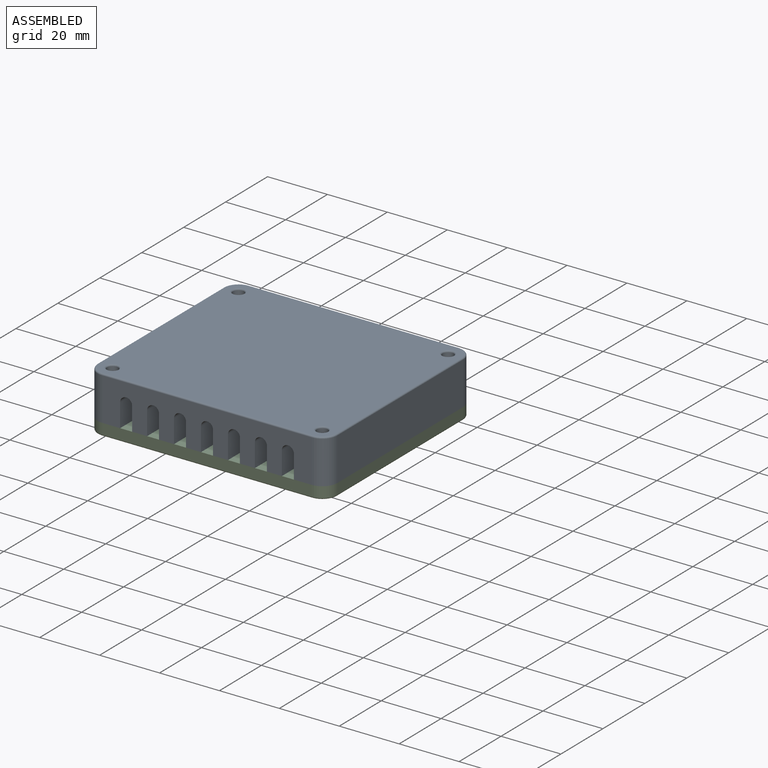
[diagram: assembled view]
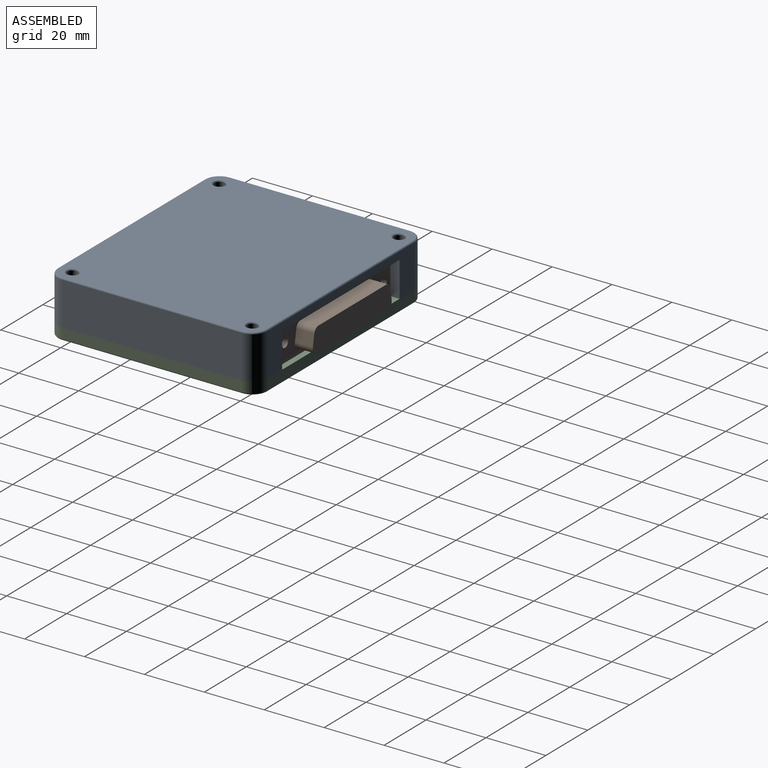
[diagram: assembled view, second angle]
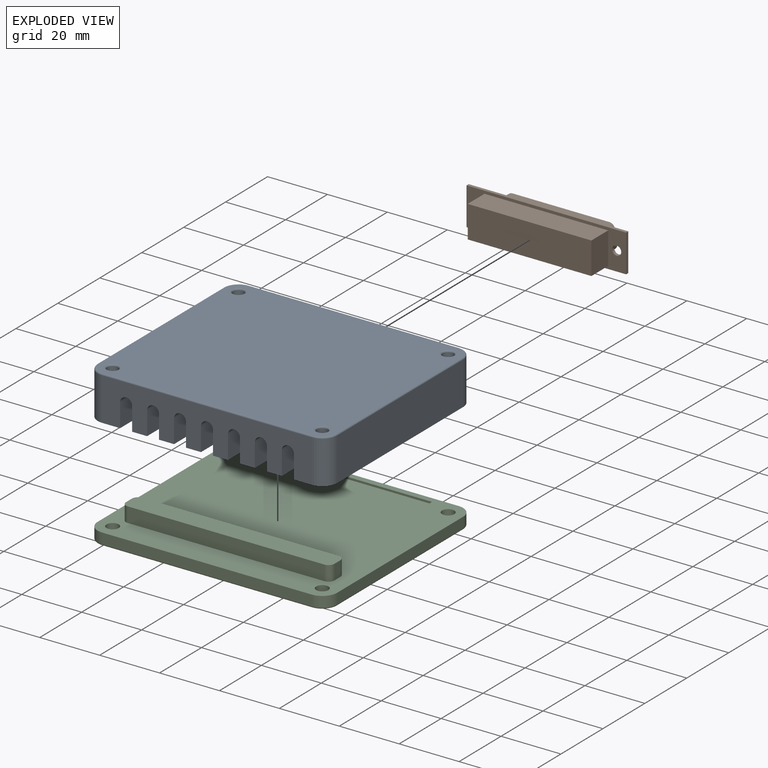
[diagram: exploded view]
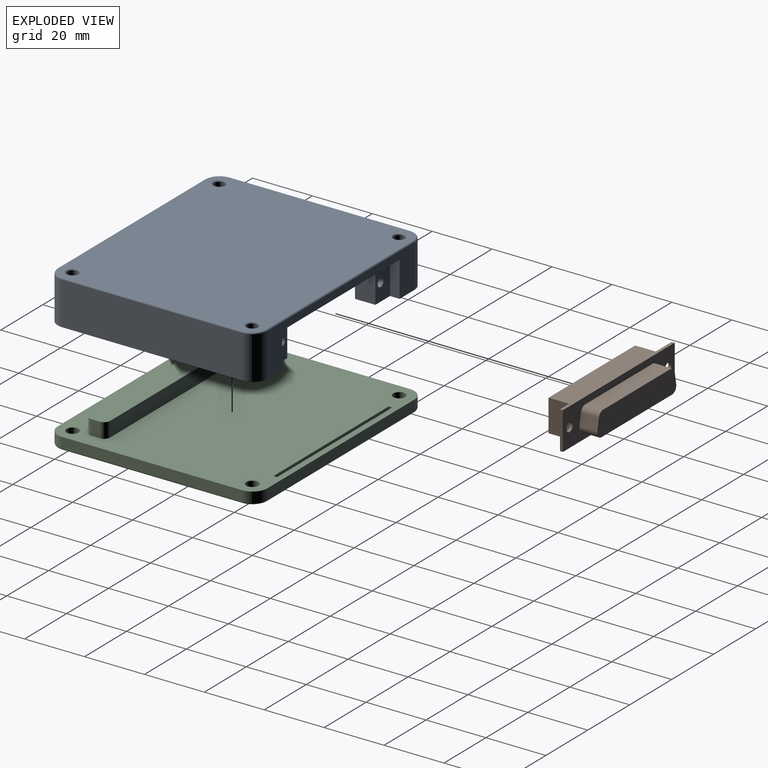
[diagram: exploded view, second angle]
ASSEMBLY  parts=3 mates=2
PART A: 106 faces, bbox 80.8x70.8x14.8 mm
  f0: plane 5x4mm, normal (0,0,1), area 20mm2, adj f23,f28,f48,f79
  f1: plane 5x4mm, normal (0,0,1), area 20mm2, adj f20,f24,f48,f79
  f2: plane 5x4mm, normal (0,0,1), area 20mm2, adj f17,f21,f48,f79
  f3: plane 5x4mm, normal (0,0,1), area 20mm2, adj f14,f18,f48,f79
  f4: plane 5x4mm, normal (0,0,1), area 20mm2, adj f11,f15,f48,f79
  f5: plane 5x4mm, normal (0,0,1), area 20mm2, adj f8,f12,f48,f79
  f6: plane 70x19mm, normal (0,0,1), area 553.4mm2, adj f9,f37,f39,f40,f43,f44,f45,f46
  f7: plane 70x19mm, normal (0,0,1), area 553.4mm2, adj f26,f37,f38,f39,f42,f44,f48,f49
  f8: plane 7.8x4mm, normal (-1,0,0), area 31.2mm2, adj f5,f10,f48,f79
  f9: plane 7.8x4mm, normal (1,0,0), area 31.2mm2, adj f6,f10,f48,f79
  f10: cylinder r=2mm len=4mm, axis (0,1,0), area 25.1mm2, adj f8,f9,f48,f79
  f11: plane 7.8x4mm, normal (-1,0,0), area 31.2mm2, adj f4,f13,f48,f79
  f12: plane 7.8x4mm, normal (1,0,0), area 31.2mm2, adj f5,f13,f48,f79
  f13: cylinder r=2mm len=4mm, axis (0,1,0), area 25.1mm2, adj f11,f12,f48,f79
  f14: plane 7.8x4mm, normal (-1,0,0), area 31.2mm2, adj f3,f16,f48,f79
  f15: plane 7.8x4mm, normal (1,0,0), area 31.2mm2, adj f4,f16,f48,f79
  f16: cylinder r=2mm len=4mm, axis (0,1,0), area 25.1mm2, adj f14,f15,f48,f79
  f17: plane 7.8x4mm, normal (-1,0,0), area 31.2mm2, adj f2,f19,f48,f79
  f18: plane 7.8x4mm, normal (1,0,0), area 31.2mm2, adj f3,f19,f48,f79
  f19: cylinder r=2mm len=4mm, axis (0,1,0), area 25.1mm2, adj f17,f18,f48,f79
  f20: plane 7.8x4mm, normal (-1,0,0), area 31.2mm2, adj f1,f22,f48,f79
  f21: plane 7.8x4mm, normal (1,0,0), area 31.2mm2, adj f2,f22,f48,f79
  f22: cylinder r=2mm len=4mm, axis (0,1,0), area 25.1mm2, adj f20,f21,f48,f79
  f23: plane 7.8x4mm, normal (-1,0,0), area 31.2mm2, adj f0,f25,f48,f79
  f24: plane 7.8x4mm, normal (1,0,0), area 31.2mm2, adj f1,f25,f48,f79
  f25: cylinder r=2mm len=4mm, axis (0,1,0), area 25.1mm2, adj f23,f24,f48,f79
  f26: plane 7.8x4mm, normal (-1,0,0), area 31.2mm2, adj f7,f27,f48,f79
  f27: cylinder r=2mm len=4mm, axis (0,1,0), area 25.1mm2, adj f26,f28,f48,f79
  f28: plane 7.8x4mm, normal (1,0,0), area 31.2mm2, adj f0,f27,f48,f79
  f29: plane 9x5mm, normal (0,0,1), area 45mm2, adj f39,f73,f78,f81
  f30: plane 9x5mm, normal (0,0,1), area 45mm2, adj f39,f70,f74,f81
  f31: plane 9x5mm, normal (0,0,1), area 45mm2, adj f39,f67,f71,f81
  f32: plane 9x5mm, normal (0,0,1), area 45mm2, adj f39,f64,f68,f81
  f33: plane 9x5mm, normal (0,0,1), area 45mm2, adj f39,f61,f65,f81
  f34: plane 9x5mm, normal (0,0,1), area 45mm2, adj f39,f58,f62,f81
  f35: plane 74x46.8mm, normal (0,0,1), area 3005.6mm2, adj f44,f45,f46,f47,f48,f49,f50,f51
  f36: plane 56x3.2mm, normal (0,0,1), area 113.2mm2, adj f37,f42,f43,f44,f54,f55,f56
  f37: plane 70x14.3mm, normal (0,-1,0), area 340.2mm2, adj f6,f7,f36,f42,f43,f84,f87,f102
  f38: plane 60x14.3mm, normal (1,0,0), area 858mm2, adj f7,f84,f85,f101
  f39: plane 70x14.3mm, normal (0,1,0), area 738.6mm2, adj f6,f7,f29,f30,f31,f32,f33,f34
  f40: plane 60x14.3mm, normal (-1,0,0), area 858mm2, adj f6,f86,f87,f98
  f41: plane 79x69mm, normal (0,0,-1), area 5364.2mm2, adj f92,f93,f94,f95,f96,f97,f98,f99
  f42: plane 11.8x3.2mm, normal (-1,0,0), area 37.8mm2, adj f7,f36,f37,f44
  f43: plane 11.8x3.2mm, normal (1,0,0), area 37.8mm2, adj f6,f36,f37,f44
  f44: plane 56x12.8mm, normal (0,-1,0), area 207.9mm2, adj f6,f7,f35,f36,f42,f43,f45,f51
  f45: plane 11.8x6.8mm, normal (1,0,0), area 80.2mm2, adj f6,f35,f44,f46
  f46: plane 11.8x4mm, normal (0,1,0), area 41mm2, adj f6,f35,f45,f53,f105
  f47: plane 20x11.8mm, normal (1,0,0), area 236mm2, adj f6,f35,f48,f105
  f48: plane 74x11.8mm, normal (0,-1,0), area 610.8mm2, adj f0,f1,f2,f3,f4,f5,f6,f7
  f49: plane 20x11.8mm, normal (-1,0,0), area 236mm2, adj f7,f35,f48,f104
  f50: plane 11.8x4mm, normal (0,1,0), area 41mm2, adj f7,f35,f51,f52,f104
  f51: plane 11.8x6.8mm, normal (-1,0,0), area 80.2mm2, adj f7,f35,f44,f50
  f52: cylinder r=1.4mm len=6.8mm, axis (0,-1,0), area 59.8mm2, adj f44,f50
  f53: cylinder r=1.4mm len=6.8mm, axis (0,-1,0), area 59.8mm2, adj f44,f46
  f54: plane 1.2x1mm, normal (1,0,0), area 1.2mm2, adj f36,f44,f55,f57
  f55: plane 55x1mm, normal (0,1,0), area 55mm2, adj f36,f54,f56,f57
  f56: plane 1.2x1mm, normal (-1,0,0), area 1.2mm2, adj f36,f44,f55,f57
  f57: plane 55x1.2mm, normal (0,0,1), area 66mm2, adj f44,f54,f55,f56
  f58: plane 9x7.8mm, normal (-1,0,0), area 70.2mm2, adj f34,f39,f60,f81
  f59: plane 9x7.8mm, normal (1,0,0), area 70.2mm2, adj f6,f39,f60,f81
  f60: cylinder r=2mm len=9mm, axis (0,1,0), area 56.5mm2, adj f39,f58,f59,f81
  f61: plane 9x7.8mm, normal (-1,0,0), area 70.2mm2, adj f33,f39,f63,f81
  f62: plane 9x7.8mm, normal (1,0,0), area 70.2mm2, adj f34,f39,f63,f81
  f63: cylinder r=2mm len=9mm, axis (0,1,0), area 56.5mm2, adj f39,f61,f62,f81
  f64: plane 9x7.8mm, normal (-1,0,0), area 70.2mm2, adj f32,f39,f66,f81
  f65: plane 9x7.8mm, normal (1,0,0), area 70.2mm2, adj f33,f39,f66,f81
  f66: cylinder r=2mm len=9mm, axis (0,1,0), area 56.5mm2, adj f39,f64,f65,f81
  f67: plane 9x7.8mm, normal (-1,0,0), area 70.2mm2, adj f31,f39,f69,f81
  f68: plane 9x7.8mm, normal (1,0,0), area 70.2mm2, adj f32,f39,f69,f81
  f69: cylinder r=2mm len=9mm, axis (0,1,0), area 56.5mm2, adj f39,f67,f68,f81
  f70: plane 9x7.8mm, normal (-1,0,0), area 70.2mm2, adj f30,f39,f72,f81
  f71: plane 9x7.8mm, normal (1,0,0), area 70.2mm2, adj f31,f39,f72,f81
  f72: cylinder r=2mm len=9mm, axis (0,1,0), area 56.5mm2, adj f39,f70,f71,f81
  f73: plane 9x7.8mm, normal (-1,0,0), area 70.2mm2, adj f29,f39,f75,f81
  f74: plane 9x7.8mm, normal (1,0,0), area 70.2mm2, adj f30,f39,f75,f81
  f75: cylinder r=2mm len=9mm, axis (0,1,0), area 56.5mm2, adj f39,f73,f74,f81
  f76: plane 9x7.8mm, normal (-1,0,0), area 70.2mm2, adj f7,f39,f77,f81
  f77: cylinder r=2mm len=9mm, axis (0,1,0), area 56.5mm2, adj f39,f76,f78,f81
  f78: plane 9x7.8mm, normal (1,0,0), area 70.2mm2, adj f29,f39,f77,f81
  f79: plane 70x12mm, normal (0,1,0), area 577.6mm2, adj f0,f1,f2,f3,f4,f5,f6,f7
  f80: plane 12x7mm, normal (-1,0,0), area 84mm2, adj f7,f79,f81,f83
  f81: plane 70x12mm, normal (0,-1,0), area 577.6mm2, adj f6,f7,f29,f30,f31,f32,f33,f34
  f82: plane 12x7mm, normal (1,0,0), area 84mm2, adj f6,f79,f81,f83
  f83: plane 70x7mm, normal (0,0,1), area 490mm2, adj f79,f80,f81,f82
  f84: cylinder r=5mm len=14.3mm, axis (0,0,1), area 112.3mm2, adj f7,f37,f38,f103
  f85: cylinder r=5mm len=14.3mm, axis (0,0,-1), area 112.3mm2, adj f7,f38,f39,f99
  f86: cylinder r=5mm len=14.3mm, axis (0,0,1), area 112.3mm2, adj f6,f39,f40,f96
  f87: cylinder r=5mm len=14.3mm, axis (0,0,-1), area 112.3mm2, adj f6,f37,f40,f100
  f88: cylinder r=1.85mm len=14.3mm, axis (0,0,-1), area 166.2mm2, adj f6,f95
  f89: cylinder r=1.85mm len=14.3mm, axis (0,0,-1), area 166.2mm2, adj f7,f92
  f90: cylinder r=1.85mm len=14.3mm, axis (0,0,-1), area 166.2mm2, adj f6,f93
  f91: cylinder r=1.85mm len=14.3mm, axis (0,0,-1), area 166.2mm2, adj f7,f94
  f92: torus R=2.35mm, axis (0,0,1), area 10mm2, adj f41,f89
  f93: torus R=2.35mm, axis (0,0,1), area 10mm2, adj f41,f90
  f94: torus R=2.35mm, axis (0,0,1), area 10mm2, adj f41,f91
  f95: torus R=2.35mm, axis (0,0,1), area 10mm2, adj f41,f88
  f96: torus R=4.5mm, axis (0,0,1), area 5.9mm2, adj f41,f86,f97,f98
  f97: cylinder r=0.5mm len=70mm, axis (-1,0,0), area 55mm2, adj f39,f41,f96,f99
  f98: cylinder r=0.5mm len=60mm, axis (0,-1,0), area 47.1mm2, adj f40,f41,f96,f100
  f99: torus R=4.5mm, axis (0,0,1), area 5.9mm2, adj f41,f85,f97,f101
  f100: torus R=4.5mm, axis (0,0,1), area 5.9mm2, adj f41,f87,f98,f102
  f101: cylinder r=0.5mm len=60mm, axis (0,1,0), area 47.1mm2, adj f38,f41,f99,f103
  f102: cylinder r=0.5mm len=70mm, axis (1,0,0), area 55mm2, adj f37,f41,f100,f103
  f103: torus R=4.5mm, axis (0,0,1), area 5.9mm2, adj f41,f84,f101,f102
  f104: plane 20x12mm, normal (-0.86,0.51,0), area 275.2mm2, adj f7,f35,f49,f50
  f105: plane 20x12mm, normal (0.86,0.51,0), area 275.2mm2, adj f6,f35,f46,f47
PART B: 22 faces, bbox 53.3x12.6x15 mm
  f0: plane 53.3x12.6mm, normal (0,0,1), area 214.7mm2, adj f1,f2,f3,f4,f5,f6,f8,f9
  f1: plane 53.3x1mm, normal (0,-1,0), area 53.3mm2, adj f0,f2,f6,f7
  f2: plane 12.6x1mm, normal (1,0,0), area 12.6mm2, adj f0,f1,f3,f7
  f3: plane 53.3x1mm, normal (0,1,0), area 53.3mm2, adj f0,f2,f6,f7
  f4: cylinder r=1.5mm len=3mm, axis (0,0,-1), area 9.4mm2, adj f0,f7
  f5: cylinder r=1.5mm len=3mm, axis (0,0,-1), area 9.4mm2, adj f0,f7
  f6: plane 12.6x1mm, normal (-1,0,0), area 12.6mm2, adj f0,f1,f3,f7
  f7: plane 53.3x12.6mm, normal (0,0,-1), area 365.2mm2, adj f1,f2,f3,f4,f5,f6,f13,f14
  f8: plane 41.3x8mm, normal (0,-1,0), area 330.4mm2, adj f0,f9,f11,f12
  f9: plane 10.72x8mm, normal (1,0,0), area 85.8mm2, adj f0,f8,f10,f12
  f10: plane 41.3x8mm, normal (0,1,0), area 330.4mm2, adj f0,f9,f11,f12
  f11: plane 10.72x8mm, normal (-1,0,0), area 85.8mm2, adj f0,f8,f10,f12
  f12: plane 41.3x10.72mm, normal (0,0,1), area 442.7mm2, adj f8,f9,f10,f11
  f13: plane 33.63x6mm, normal (0,-1,0), area 201.8mm2, adj f7,f17,f18,f21
  f14: plane 6x4mm, normal (-0.98,0.17,0), area 24.4mm2, adj f7,f17,f18,f19
  f15: plane 32.22x6mm, normal (0,1,0), area 193.3mm2, adj f7,f17,f19,f20
  f16: plane 6x4mm, normal (0.98,0.17,0), area 24.4mm2, adj f7,f17,f20,f21
  f17: plane 37.63x8mm, normal (0,0,-1), area 292.2mm2, adj f13,f14,f15,f16,f18,f19,f20,f21
  f18: cylinder r=2mm len=6mm, axis (0,0,-1), area 20.9mm2, adj f7,f13,f14,f17
  f19: cylinder r=2mm len=6mm, axis (0,0,1), area 16.8mm2, adj f7,f14,f15,f17
  f20: cylinder r=2mm len=6mm, axis (0,0,-1), area 16.8mm2, adj f7,f15,f16,f17
  f21: cylinder r=2mm len=6mm, axis (0,0,1), area 20.9mm2, adj f7,f13,f16,f17
PART C: 44 faces, bbox 80.8x70.8x9 mm
  f0: plane 80x70mm, normal (0,0,1), area 4989.9mm2, adj f1,f2,f3,f4,f6,f7,f8,f9
  f1: plane 70x3.5mm, normal (0,-1,0), area 245mm2, adj f0,f16,f19,f38
  f2: plane 60x3.5mm, normal (1,0,0), area 210mm2, adj f0,f16,f17,f37
  f3: plane 70x3.5mm, normal (0,1,0), area 245mm2, adj f0,f17,f18,f33
  f4: plane 60x3.5mm, normal (-1,0,0), area 210mm2, adj f0,f18,f19,f34
  f5: plane 79x69mm, normal (0,0,-1), area 5211.2mm2, adj f28,f29,f30,f31,f32,f33,f34,f35
  f6: plane 55x1mm, normal (0,-1,0), area 55mm2, adj f0,f7,f9,f10
  f7: plane 1.2x1mm, normal (1,0,0), area 1.2mm2, adj f0,f6,f8,f10
  f8: plane 55x1mm, normal (0,1,0), area 55mm2, adj f0,f7,f9,f10
  f9: plane 1.2x1mm, normal (-1,0,0), area 1.2mm2, adj f0,f6,f8,f10
  f10: plane 55x1.2mm, normal (0,0,1), area 66mm2, adj f6,f7,f8,f9
  f11: plane 5x2.8mm, normal (-1,0,0), area 14mm2, adj f0,f15,f40,f43
  f12: plane 65.6x5mm, normal (0,-1,0), area 328mm2, adj f0,f15,f40,f41
  f13: plane 5x2.8mm, normal (1,0,0), area 14mm2, adj f0,f15,f41,f42
  f14: plane 65.6x5mm, normal (0,1,0), area 328mm2, adj f0,f15,f42,f43
  f15: plane 69.6x6.8mm, normal (0,0,1), area 469.8mm2, adj f11,f12,f13,f14,f40,f41,f42,f43
  f16: cylinder r=5mm len=5mm, axis (0,0,1), area 27.5mm2, adj f0,f1,f2,f39
  f17: cylinder r=5mm len=5mm, axis (0,0,-1), area 27.5mm2, adj f0,f2,f3,f35
  f18: cylinder r=5mm len=5mm, axis (0,0,1), area 27.5mm2, adj f0,f3,f4,f32
  f19: cylinder r=5mm len=5mm, axis (0,0,-1), area 27.5mm2, adj f0,f1,f4,f36
  f20: cylinder r=2.05mm len=4.1mm, axis (0,0,-1), area 26.4mm2, adj f0,f21
  f21: cone r=2.05mm half-angle=45deg, axis (0,0,-1), area 47.3mm2, adj f20,f31
  f22: cylinder r=2.05mm len=4.1mm, axis (0,0,-1), area 26.4mm2, adj f0,f23
  f23: cone r=2.05mm half-angle=45deg, axis (0,0,-1), area 47.3mm2, adj f22,f30
  f24: cylinder r=2.05mm len=4.1mm, axis (0,0,-1), area 26.4mm2, adj f0,f25
  f25: cone r=2.05mm half-angle=45deg, axis (0,0,-1), area 47.3mm2, adj f24,f29
  f26: cylinder r=2.05mm len=4.1mm, axis (0,0,-1), area 26.4mm2, adj f0,f27
  f27: cone r=2.05mm half-angle=45deg, axis (0,0,-1), area 47.3mm2, adj f26,f28
  f28: torus R=4.21mm, axis (0,0,1), area 9.9mm2, adj f5,f27
  f29: torus R=4.21mm, axis (0,0,1), area 9.9mm2, adj f5,f25
  f30: torus R=4.21mm, axis (0,0,1), area 9.9mm2, adj f5,f23
  f31: torus R=4.21mm, axis (0,0,1), area 9.9mm2, adj f5,f21
  f32: torus R=4.5mm, axis (0,0,1), area 5.9mm2, adj f5,f18,f33,f34
  f33: cylinder r=0.5mm len=70mm, axis (-1,0,0), area 55mm2, adj f3,f5,f32,f35
  f34: cylinder r=0.5mm len=60mm, axis (0,-1,0), area 47.1mm2, adj f4,f5,f32,f36
  f35: torus R=4.5mm, axis (0,0,1), area 5.9mm2, adj f5,f17,f33,f37
  f36: torus R=4.5mm, axis (0,0,1), area 5.9mm2, adj f5,f19,f34,f38
  f37: cylinder r=0.5mm len=60mm, axis (0,1,0), area 47.1mm2, adj f2,f5,f35,f39
  f38: cylinder r=0.5mm len=70mm, axis (1,0,0), area 55mm2, adj f1,f5,f36,f39
  f39: torus R=4.5mm, axis (0,0,1), area 5.9mm2, adj f5,f16,f37,f38
  f40: cylinder r=2mm len=5mm, axis (0,0,1), area 15.7mm2, adj f0,f11,f12,f15
  f41: cylinder r=2mm len=5mm, axis (0,0,-1), area 15.7mm2, adj f0,f12,f13,f15
  f42: cylinder r=2mm len=5mm, axis (0,0,1), area 15.7mm2, adj f0,f13,f14,f15
  f43: cylinder r=2mm len=5mm, axis (0,0,-1), area 15.7mm2, adj f0,f11,f14,f15
PLACE A rot(axis=(1,0,0),180deg) t=(-42.99,-29.54,19.43)mm
PLACE B rot(axis=(1,0,0),90deg) t=(-42.99,3.26,10.43)mm
PLACE C t=(-42.99,-29.54,0.63)mm
MATE fastened A.f87 <-> C.f18  axis (0,0,-1) through (-77.99,0.46,4.63)mm
MATE fastened B.f5 <-> A.f52  axis (0,-1,0) through (-19.49,2.26,10.43)mm
